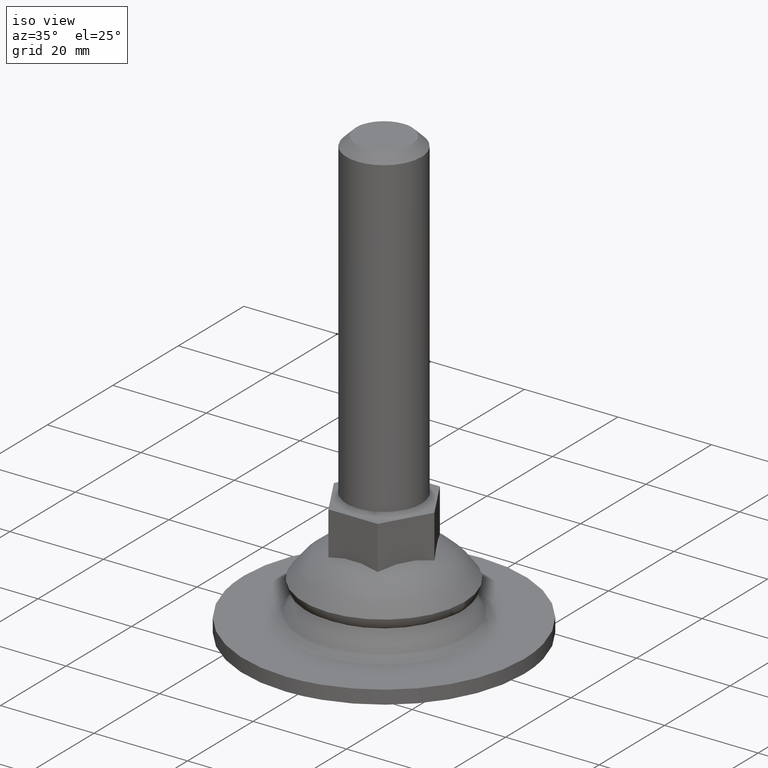
[diagram: clean part render]
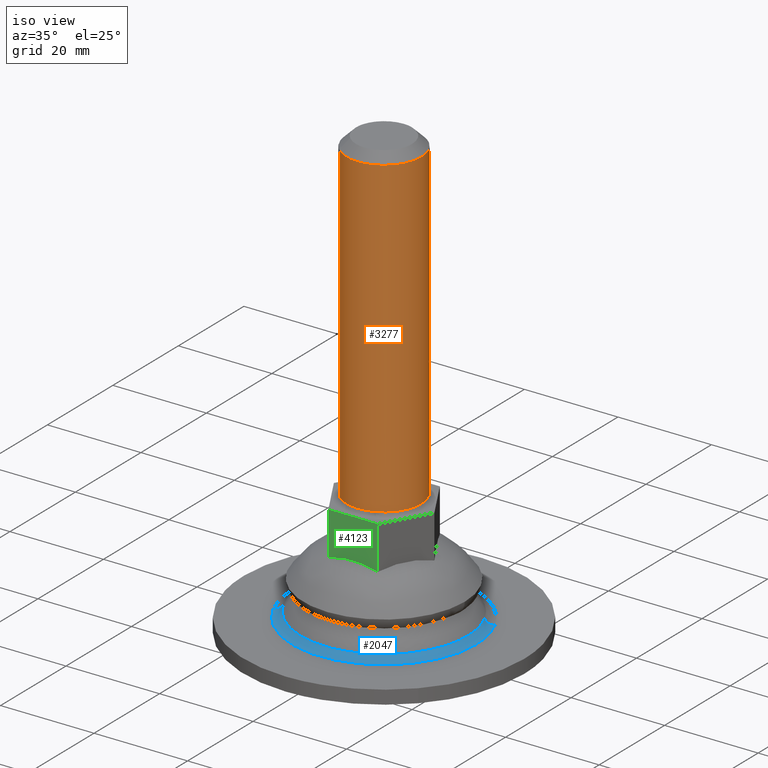
[diagram: same view with three faces highlighted in distinct colors, each labeled with its STEP entity id]
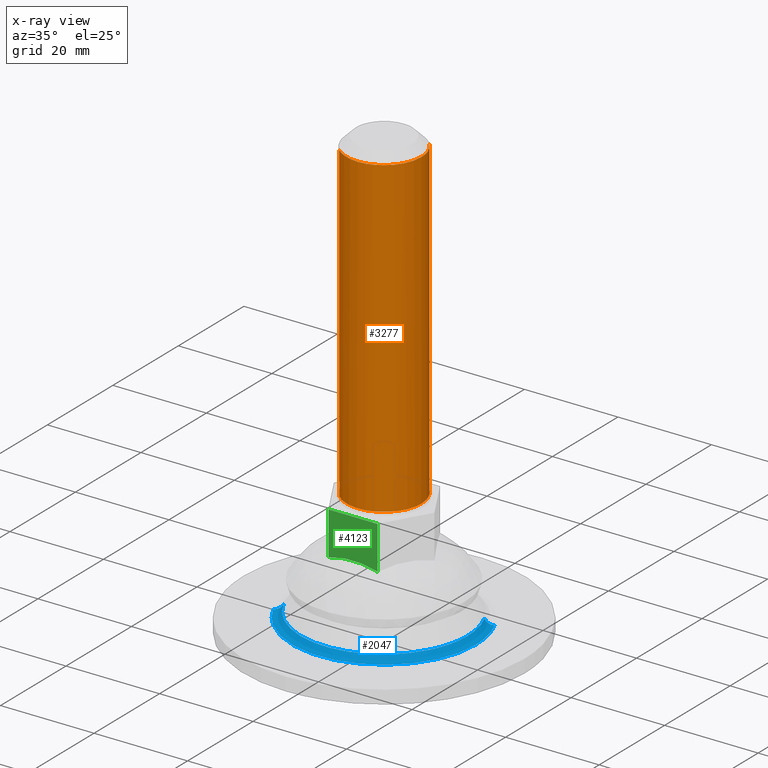
[diagram: x-ray of the same camera — body ghosted, the three highlighted faces saturated]
A machine part, iso view with three faces highlighted in distinct colors.
The next image is the same camera in x-ray (body ghosted, the three faces saturated) — at least one of them is partly hidden behind the body in this view.
Their STEP definitions:

[orange] entity #3277 — the highlighted face is a freeform B-spline surface patch.
#3082=CARTESIAN_POINT('',(5.706003812383623,5.607274329756733,93.999999897581574));
#3083=VERTEX_POINT('',#3082);
#3089=CARTESIAN_POINT('',(5.506836925585615,5.802995254554674,94.000000000000014));
#3090=VERTEX_POINT('',#3089);
#3091=CARTESIAN_POINT('',(5.506836925585615,5.802995254554674,94.000000000000014));
#3092=CARTESIAN_POINT('',(5.574356803127095,5.738921315413307,93.999999965854130));
#3093=CARTESIAN_POINT('',(5.640761045411946,5.673665984991286,93.999999931706867));
#3094=CARTESIAN_POINT('',(5.706003812383623,5.607274329756733,93.999999897581574));
#3095=B_SPLINE_CURVE_WITH_KNOTS('',3,(#3091,#3092,#3093,#3094),.UNSPECIFIED.,.F.,.U.,(4,4),(1.686004E-011,0.279253544245992),.UNSPECIFIED.);
#3096=EDGE_CURVE('',#3090,#3083,#3095,.T.);
#3146=CARTESIAN_POINT('',(-5.506836925585604,-5.802995254554662,94.0));
#3147=VERTEX_POINT('',#3146);
#3155=CARTESIAN_POINT('',(-0.000001714694257,-7.999999999999815,94.0));
#3156=VERTEX_POINT('',#3155);
#3157=CARTESIAN_POINT('',(-0.000001714694257,-7.999999999999815,94.0));
#3158=CARTESIAN_POINT('',(-0.506148926074638,-8.000047701292843,93.999999999999929));
#3159=CARTESIAN_POINT('',(-1.550059695286096,-7.900623406261761,94.000000000000455));
#3160=CARTESIAN_POINT('',(-2.859906918140296,-7.508860580389622,93.999999999999446));
#3161=CARTESIAN_POINT('',(-4.229075566327349,-6.846109738757063,94.000000000000597));
#3162=CARTESIAN_POINT('',(-5.025063494200799,-6.260429109874632,93.999999999999687));
#3163=CARTESIAN_POINT('',(-5.506836925585604,-5.802995254554662,94.0));
#3164=B_SPLINE_CURVE_WITH_KNOTS('',3,(#3157,#3158,#3159,#3160,#3161,#3162,#3163),.UNSPECIFIED.,.F.,.U.,(4,1,1,1,4),(0.000000016175435,1.518445172253514,3.131783613222968,4.080816135879150,6.073779891619102),.UNSPECIFIED.);
#3165=EDGE_CURVE('',#3156,#3147,#3164,.T.);
#3167=CARTESIAN_POINT('',(8.0,0.0,94.0));
#3168=VERTEX_POINT('',#3167);
#3169=CARTESIAN_POINT('',(8.0,0.0,94.0));
#3170=CARTESIAN_POINT('',(8.000031252900744,-0.458147609011140,93.999999999999957));
#3171=CARTESIAN_POINT('',(7.915472021908800,-1.439897918624933,93.999999999999972));
#3172=CARTESIAN_POINT('',(7.573438608584242,-2.675866616802981,94.000000000000071));
#3173=CARTESIAN_POINT('',(7.034794839203915,-3.871114164389953,93.999999999999858));
#3174=CARTESIAN_POINT('',(6.342509764222191,-4.949746148617195,94.000000000000199));
#3175=CARTESIAN_POINT('',(5.396877181086193,-5.955192201560070,93.999999999999929));
#3176=CARTESIAN_POINT('',(4.378406588576291,-6.730059063173249,94.000000000000469));
#3177=CARTESIAN_POINT('',(3.171048254998694,-7.394713006353076,93.999999999999574));
#3178=CARTESIAN_POINT('',(1.701674684745823,-7.880069066584490,94.000000000000341));
#3179=CARTESIAN_POINT('',(0.556320798870875,-8.000081236078479,93.999999999999915));
#3180=CARTESIAN_POINT('',(-0.000001714694257,-7.999999999999815,94.0));
#3181=B_SPLINE_CURVE_WITH_KNOTS('',3,(#3169,#3170,#3171,#3172,#3173,#3174,#3175,#3176,#3177,#3178,#3179,#3180),.UNSPECIFIED.,.F.,.U.,(4,1,1,1,1,1,1,1,1,4),(0.000000056674985,1.374452930891827,2.945259672522143,3.828848863431151,5.301491402975784,6.774070816200982,7.952191861542921,9.130310846397389,10.897483808358460,12.566450429438150),.UNSPECIFIED.);
#3182=EDGE_CURVE('',#3168,#3156,#3181,.T.);
#3184=CARTESIAN_POINT('',(5.706003812383623,5.607274329756733,93.999999897581574));
#3185=CARTESIAN_POINT('',(6.182499645132988,5.122681552220209,93.999999906432691));
#3186=CARTESIAN_POINT('',(6.754244905088803,4.368903645892124,93.999999920201120));
#3187=CARTESIAN_POINT('',(7.389245733843075,3.128841386910978,93.999999942850494));
#3188=CARTESIAN_POINT('',(7.854757695485142,1.812146395846576,93.999999966901015));
#3189=CARTESIAN_POINT('',(8.000204171574975,0.679610116457893,93.999999987586776));
#3190=CARTESIAN_POINT('',(8.0,0.0,94.0));
#3191=B_SPLINE_CURVE_WITH_KNOTS('',3,(#3184,#3185,#3186,#3187,#3188,#3189,#3190),.UNSPECIFIED.,.F.,.U.,(4,1,1,1,4),(0.000000018089785,2.038780373395662,2.815467784469893,4.174630025855187,6.213410381146264),.UNSPECIFIED.);
#3192=EDGE_CURVE('',#3083,#3168,#3191,.T.);
#3202=CARTESIAN_POINT('',(5.506836605550030,5.802994968098299,95.675000003318871));
#3203=CARTESIAN_POINT('',(11.309831573648330,0.296158362548269,95.675000003318857));
#3204=CARTESIAN_POINT('',(5.802994968098299,-5.506836605550030,95.675000003318871));
#3205=CARTESIAN_POINT('',(0.296158362548269,-11.309831573648330,95.675000003318857));
#3206=CARTESIAN_POINT('',(-5.506836605550030,-5.802994968098299,95.675000003318871));
#3207=CARTESIAN_POINT('',(5.506836605550030,5.802994968098299,25.283124863844080));
#3208=CARTESIAN_POINT('',(11.309831573648330,0.296158362548269,25.283124863844087));
#3209=CARTESIAN_POINT('',(5.802994968098299,-5.506836605550030,25.283124863844080));
#3210=CARTESIAN_POINT('',(0.296158362548269,-11.309831573648330,25.283124863844069));
#3211=CARTESIAN_POINT('',(-5.506836605550030,-5.802994968098299,25.283124863844080));
#3219=(BOUNDED_SURFACE()B_SPLINE_SURFACE(2,1,((#3202,#3207),(#3203,#3208),(#3204,#3209),(#3205,#3210),(#3206,#3211)),.UNSPECIFIED.,.F.,.F.,.U.)B_SPLINE_SURFACE_WITH_KNOTS((3,2,3),(2,2),(0.0,13.254833995939039,26.509667991878079),(0.0,70.391875139474791),.UNSPECIFIED.)GEOMETRIC_REPRESENTATION_ITEM()RATIONAL_B_SPLINE_SURFACE(((1.0,1.0),(0.707106781186548,0.707106781186548),(1.0,1.0),(0.707106781186548,0.707106781186548),(1.0,1.0)))REPRESENTATION_ITEM('')SURFACE());
#3220=ORIENTED_EDGE('',*,*,#3096,.T.);
#3221=ORIENTED_EDGE('',*,*,#3192,.T.);
#3222=ORIENTED_EDGE('',*,*,#3182,.T.);
#3223=ORIENTED_EDGE('',*,*,#3165,.T.);
#3224=CARTESIAN_POINT('',(-5.506836651415622,-5.802994924573477,26.999999867248420));
#3225=VERTEX_POINT('',#3224);
#3226=CARTESIAN_POINT('',(-5.506836925585604,-5.802995254554662,94.0));
#3227=CARTESIAN_POINT('',(-5.506836651415622,-5.802994924573477,26.999999867248420));
#3228=QUASI_UNIFORM_CURVE('',1,(#3226,#3227),.UNSPECIFIED.,.F.,.U.);
#3229=EDGE_CURVE('',#3147,#3225,#3228,.T.);
#3230=ORIENTED_EDGE('',*,*,#3229,.T.);
#3231=CARTESIAN_POINT('',(3.223251485728826,-7.321929380958745,26.999999867252320));
#3232=VERTEX_POINT('',#3231);
#3233=CARTESIAN_POINT('',(-5.506836651415622,-5.802994924573477,26.999999867248420));
#3234=CARTESIAN_POINT('',(-5.134337615001857,-6.156570955704853,26.999999867248629));
#3235=CARTESIAN_POINT('',(-4.379004946413430,-6.746202921918393,26.999999867249169));
#3236=CARTESIAN_POINT('',(-3.162666406801427,-7.385777527716805,26.999999867249709));
#3237=CARTESIAN_POINT('',(-1.930009025707038,-7.799167196479332,26.999999867250409));
#3238=CARTESIAN_POINT('',(-0.525585423841248,-8.030341771229585,26.999999867251081));
#3239=CARTESIAN_POINT('',(1.244539289322147,-7.986258841535419,26.999999867251631));
#3240=CARTESIAN_POINT('',(2.529459733741287,-7.627698338543156,26.999999867252171));
#3241=CARTESIAN_POINT('',(3.223251485728826,-7.321929380958745,26.999999867252320));
#3242=B_SPLINE_CURVE_WITH_KNOTS('',3,(#3233,#3234,#3235,#3236,#3237,#3238,#3239,#3240,#3241),.UNSPECIFIED.,.F.,.U.,(4,1,1,1,1,1,4),(0.000000048305294,1.540749957915482,2.861413592086605,4.108707189269994,5.429325132856368,7.116845636353181,9.391300613907250),.UNSPECIFIED.);
#3243=EDGE_CURVE('',#3225,#3232,#3242,.T.);
#3244=ORIENTED_EDGE('',*,*,#3243,.T.);
#3245=CARTESIAN_POINT('',(8.0,0.0,26.999999867245901));
#3246=VERTEX_POINT('',#3245);
#3247=CARTESIAN_POINT('',(3.223251485728826,-7.321929380958745,26.999999867252320));
#3248=CARTESIAN_POINT('',(3.862617469065063,-7.040666911204275,26.999999867251891));
#3249=CARTESIAN_POINT('',(5.025317381094191,-6.334428598487713,26.999999867251031));
#3250=CARTESIAN_POINT('',(6.295124801580811,-5.030764591347351,26.999999867249649));
#3251=CARTESIAN_POINT('',(7.174503885137224,-3.641870121184164,26.999999867248469));
#3252=CARTESIAN_POINT('',(7.819929795278646,-2.023051893947323,26.999999867247389));
#3253=CARTESIAN_POINT('',(8.000286896857450,-0.746683218606934,26.999999867246238));
#3254=CARTESIAN_POINT('',(8.0,0.0,26.999999867245901));
#3255=B_SPLINE_CURVE_WITH_KNOTS('',3,(#3247,#3248,#3249,#3250,#3251,#3252,#3253,#3254),.UNSPECIFIED.,.F.,.U.,(4,1,1,1,1,4),(0.000000047874217,2.095448245641456,4.046389078922818,5.419260210852647,7.008917837697455,9.248880208979655),.UNSPECIFIED.);
#3256=EDGE_CURVE('',#3232,#3246,#3255,.T.);
#3257=ORIENTED_EDGE('',*,*,#3256,.T.);
#3258=CARTESIAN_POINT('',(5.506836651415623,5.802994924573479,26.999999867248430));
#3259=VERTEX_POINT('',#3258);
#3260=CARTESIAN_POINT('',(8.0,0.0,26.999999867245901));
#3261=CARTESIAN_POINT('',(8.000057572425897,0.507239076934535,26.999999867246061));
#3262=CARTESIAN_POINT('',(7.912862627156020,1.420247798132279,26.999999867246309));
#3263=CARTESIAN_POINT('',(7.538037677053555,2.794421304275376,26.999999867246821));
#3264=CARTESIAN_POINT('',(6.832927443940565,4.302186224485710,26.999999867247471));
#3265=CARTESIAN_POINT('',(6.046683758062447,5.291069403687211,26.999999867248160));
#3266=CARTESIAN_POINT('',(5.506836651415623,5.802994924573479,26.999999867248430));
#3267=B_SPLINE_CURVE_WITH_KNOTS('',3,(#3260,#3261,#3262,#3263,#3264,#3265,#3266),.UNSPECIFIED.,.F.,.U.,(4,1,1,1,4),(0.000000017982752,1.521718701292829,2.739108314839731,4.260807558806393,6.492668253596076),.UNSPECIFIED.);
#3268=EDGE_CURVE('',#3246,#3259,#3267,.T.);
#3269=ORIENTED_EDGE('',*,*,#3268,.T.);
#3270=CARTESIAN_POINT('',(5.506836925585615,5.802995254554674,94.000000000000014));
#3271=CARTESIAN_POINT('',(5.506836651415623,5.802994924573479,26.999999867248430));
#3272=QUASI_UNIFORM_CURVE('',1,(#3270,#3271),.UNSPECIFIED.,.F.,.U.);
#3273=EDGE_CURVE('',#3090,#3259,#3272,.T.);
#3274=ORIENTED_EDGE('',*,*,#3273,.F.);
#3275=EDGE_LOOP('',(#3220,#3221,#3222,#3223,#3230,#3244,#3257,#3269,#3274));
#3276=FACE_OUTER_BOUND('',#3275,.T.);
#3277=ADVANCED_FACE('',(#3276),#3219,.T.);

[blue] entity #2047 — the highlighted face is a freeform B-spline surface patch.
#1722=CARTESIAN_POINT('',(-16.161437285455271,-7.604995119649921,4.076013502861265));
#1723=VERTEX_POINT('',#1722);
#1734=CARTESIAN_POINT('',(17.861355096319649,0.0,4.076013504395419));
#1735=VERTEX_POINT('',#1734);
#1736=CARTESIAN_POINT('',(17.861355096319649,0.0,4.076013504395419));
#1737=CARTESIAN_POINT('',(17.861462997717631,-1.099604924009491,4.076013504384848));
#1738=CARTESIAN_POINT('',(17.701263669010508,-2.827505183353669,4.076013504361439));
#1739=CARTESIAN_POINT('',(17.109164471905839,-5.273771363216730,4.076013504312449));
#1740=CARTESIAN_POINT('',(16.187037402921039,-7.752667962699063,4.076013504249086));
#1741=CARTESIAN_POINT('',(14.762230837327809,-10.212359501096831,4.076013504164281));
#1742=CARTESIAN_POINT('',(13.044681924774610,-12.265500037122051,4.076013504070811));
#1743=CARTESIAN_POINT('',(11.437628406546301,-13.771305855458539,4.076013503987340));
#1744=CARTESIAN_POINT('',(9.564665384418806,-15.156536728787220,4.076013503893663));
#1745=CARTESIAN_POINT('',(7.317453388313557,-16.367653832734501,4.076013503785338));
#1746=CARTESIAN_POINT('',(4.915574956308149,-17.227836288795949,4.076013503674269));
#1747=CARTESIAN_POINT('',(2.267383342315917,-17.790584076673220,4.076013503554785));
#1748=CARTESIAN_POINT('',(-0.725682375849336,-17.951512482593380,4.076013503424946));
#1749=CARTESIAN_POINT('',(-3.697120319048789,-17.551996085019759,4.076013503301038));
#1750=CARTESIAN_POINT('',(-6.048671808205473,-16.845116352629930,4.076013503206875));
#1751=CARTESIAN_POINT('',(-8.247884618830062,-15.908251745241810,4.076013503121414));
#1752=CARTESIAN_POINT('',(-10.195919786052411,-14.740630523062849,4.076013503048955));
#1753=CARTESIAN_POINT('',(-12.173525820745230,-13.133343196929570,4.076013502979478));
#1754=CARTESIAN_POINT('',(-13.503225971277850,-11.746476232871240,4.076013502935634));
#1755=CARTESIAN_POINT('',(-14.941751357583660,-9.878207113856666,4.076013502891860));
#1756=CARTESIAN_POINT('',(-15.706733883399140,-8.571582662157457,4.076013502871359));
#1757=CARTESIAN_POINT('',(-16.161437285455271,-7.604995119649921,4.076013502861265));
#1758=B_SPLINE_CURVE_WITH_KNOTS('',3,(#1736,#1737,#1738,#1739,#1740,#1741,#1742,#1743,#1744,#1745,#1746,#1747,#1748,#1749,#1750,#1751,#1752,#1753,#1754,#1755,#1756,#1757),.UNSPECIFIED.,.F.,.U.,(4,1,1,1,1,1,1,1,1,1,1,1,1,1,1,1,1,1,1,4),(0.000000133176734,3.298790902591485,5.183853572113705,7.540199099210220,11.216055062083580,13.666636185342099,15.551698810070480,17.813753929373771,20.641323598397289,23.186154100918230,25.448148008372591,28.746996961086630,32.140111396161572,34.402183998165782,36.098740628561060,39.303344999912007,41.188405734581082,43.733225465086377,45.052762489385827,48.257323669786260),.UNSPECIFIED.);
#1759=EDGE_CURVE('',#1735,#1723,#1758,.T.);
#1761=CARTESIAN_POINT('',(16.161437285455271,7.604995119649917,4.076013502861264));
#1762=VERTEX_POINT('',#1761);
#1763=CARTESIAN_POINT('',(16.161437285455271,7.604995119649917,4.076013502861264));
#1764=CARTESIAN_POINT('',(16.771478346961320,6.309344756953520,4.076013503136400));
#1765=CARTESIAN_POINT('',(17.599474884198521,3.805132782692286,4.076013503653088));
#1766=CARTESIAN_POINT('',(17.861501920773790,1.186566538491044,4.076013504167452));
#1767=CARTESIAN_POINT('',(17.861355096319649,0.0,4.076013504395419));
#1768=B_SPLINE_CURVE_WITH_KNOTS('',3,(#1763,#1764,#1765,#1766,#1767),.UNSPECIFIED.,.F.,.U.,(4,1,4),(4.674820E-009,4.296163057215974,7.855849732298115),.UNSPECIFIED.);
#1769=EDGE_CURVE('',#1762,#1735,#1768,.T.);
#1908=CARTESIAN_POINT('',(-17.810370395241780,-8.380924143207288,2.900000000000000));
#1909=VERTEX_POINT('',#1908);
#1921=CARTESIAN_POINT('',(-17.810370395241780,-8.380924143207288,2.900000000000000));
#1922=CARTESIAN_POINT('',(-17.648325472970580,-8.304671590835781,2.899945637036400));
#1923=CARTESIAN_POINT('',(-17.313448899622191,-8.147090636805839,2.950035150493140));
#1924=CARTESIAN_POINT('',(-16.843358861858071,-7.925883056084557,3.176913314961951));
#1925=CARTESIAN_POINT('',(-16.433816831999071,-7.733167205182173,3.557055421741022));
#1926=CARTESIAN_POINT('',(-16.237031558915060,-7.640567084603003,3.891027084317592));
#1927=CARTESIAN_POINT('',(-16.161437285455271,-7.604995119649921,4.076013502861265));
#1928=B_SPLINE_CURVE_WITH_KNOTS('',3,(#1921,#1922,#1923,#1924,#1925,#1926,#1927),.UNSPECIFIED.,.F.,.U.,(4,1,1,1,4),(0.000000091849443,0.537266242975528,1.110378796055572,1.683437325127913,2.292342256153771),.UNSPECIFIED.);
#1929=EDGE_CURVE('',#1909,#1723,#1928,.T.);
#1933=CARTESIAN_POINT('',(17.810370395241780,8.380924143207286,2.900000000000000));
#1934=VERTEX_POINT('',#1933);
#1935=CARTESIAN_POINT('',(17.810370395241780,8.380924143207286,2.900000000000000));
#1936=CARTESIAN_POINT('',(17.594283228520471,8.279241240921390,2.899799829276054));
#1937=CARTESIAN_POINT('',(17.194719129786471,8.091220648005560,2.980089206946831));
#1938=CARTESIAN_POINT('',(16.708363669423839,7.862359140390998,3.280970363588166));
#1939=CARTESIAN_POINT('',(16.370554318894829,7.703398126176447,3.656409619794911));
#1940=CARTESIAN_POINT('',(16.219271397008988,7.632209786781754,3.934576043731679));
#1941=CARTESIAN_POINT('',(16.161437285455271,7.604995119649917,4.076013502861264));
#1942=B_SPLINE_CURVE_WITH_KNOTS('',3,(#1935,#1936,#1937,#1938,#1939,#1940,#1941),.UNSPECIFIED.,.F.,.U.,(4,1,1,1,4),(0.000000091852903,0.716364542494928,1.325250374454535,1.826712606158751,2.292342256153747),.UNSPECIFIED.);
#1943=EDGE_CURVE('',#1934,#1762,#1942,.T.);
#1974=CARTESIAN_POINT('',(17.672005989316656,8.927309131011166,2.902888114668352));
#1975=CARTESIAN_POINT('',(17.789111124082766,8.678448052001041,2.902888114668352));
#1976=CARTESIAN_POINT('',(26.334259614935313,-9.480916846751631,2.902888114668352));
#1977=CARTESIAN_POINT('',(8.426671384091838,-17.907588230843473,2.902888114668351));
#1978=CARTESIAN_POINT('',(-9.480916846751631,-26.334259614935313,2.902888114668352));
#1979=CARTESIAN_POINT('',(-18.026065337582050,-8.174894716229650,2.902888114668353));
#1980=CARTESIAN_POINT('',(-18.143170472326549,-7.926033637265452,2.902888114668352));
#1981=CARTESIAN_POINT('',(16.380507584240977,8.274887130289320,2.825074154295417));
#1982=CARTESIAN_POINT('',(16.489054488839663,8.044213216155738,2.825074154295417));
#1983=CARTESIAN_POINT('',(24.409709888543279,-8.788036310516127,2.825074154295417));
#1984=CARTESIAN_POINT('',(7.810836789013578,-16.598873099529701,2.825074154295418));
#1985=CARTESIAN_POINT('',(-8.788036310516127,-24.409709888543279,2.825074154295417));
#1986=CARTESIAN_POINT('',(-16.708691710199226,-7.577460361914995,2.825074154295417));
#1987=CARTESIAN_POINT('',(-16.817238614777882,-7.346786447823984,2.825074154295417));
#1988=CARTESIAN_POINT('',(15.911677999464356,8.038050031230231,4.175024163968951));
#1989=CARTESIAN_POINT('',(16.017118162715125,7.813978278526991,4.175024163968951));
#1990=CARTESIAN_POINT('',(23.711074996265996,-8.536512272370633,4.175024163968952));
#1991=CARTESIAN_POINT('',(7.587281361947676,-16.123793634318314,4.175024163968951));
#1992=CARTESIAN_POINT('',(-8.536512272370633,-23.711074996265996,4.175024163968952));
#1993=CARTESIAN_POINT('',(-16.230469105901566,-7.360584445410690,4.175024163968950));
#1994=CARTESIAN_POINT('',(-16.335909269132884,-7.136512692748801,4.175024163968951));
#2002=(BOUNDED_SURFACE()B_SPLINE_SURFACE(2,2,((#1974,#1981,#1988),(#1975,#1982,#1989),(#1976,#1983,#1990),(#1977,#1984,#1991),(#1978,#1985,#1992),(#1979,#1986,#1993),(#1980,#1987,#1994)),.UNSPECIFIED.,.F.,.F.,.U.)B_SPLINE_SURFACE_WITH_KNOTS((3,1,2,1,3),(3,3),(0.0,0.655821763527444,33.446909936200093,66.237998108872731,66.893819872277007),(0.0,2.593376482192816),.UNSPECIFIED.)GEOMETRIC_REPRESENTATION_ITEM()RATIONAL_B_SPLINE_SURFACE(((0.929318785188971,0.752974996682848,0.930094023897170),(0.923938001583604,0.748615248895571,0.924708751636460),(0.649518037740262,0.526268111769067,0.650059866370603),(0.918557217978238,0.744255501108295,0.919323479375749),(0.649518037740262,0.526268111769067,0.650059866370603),(0.923938001582594,0.748615248894752,0.924708751635448),(0.929318785186950,0.752974996681210,0.930094023895147)))REPRESENTATION_ITEM('')SURFACE());
#2003=CARTESIAN_POINT('',(19.683728893064199,0.0,2.900000000000000));
#2004=VERTEX_POINT('',#2003);
#2005=CARTESIAN_POINT('',(19.683728893064199,0.0,2.900000000000000));
#2006=CARTESIAN_POINT('',(19.683771105959341,-0.900189904841100,2.900000000000001));
#2007=CARTESIAN_POINT('',(19.567138763297240,-2.596689562571804,2.900000000000002));
#2008=CARTESIAN_POINT('',(19.082996160729270,-5.011391445821820,2.900000000000009));
#2009=CARTESIAN_POINT('',(18.391903908746020,-7.120678242345872,2.899999999999985));
#2010=CARTESIAN_POINT('',(17.420397078399940,-9.268520910925716,2.899999999999995));
#2011=CARTESIAN_POINT('',(16.176392996609788,-11.315164814445330,2.900000000000033));
#2012=CARTESIAN_POINT('',(14.587963415511810,-13.287128838465231,2.899999999999929));
#2013=CARTESIAN_POINT('',(13.070907025805781,-14.762116429434680,2.900000000000135));
#2014=CARTESIAN_POINT('',(11.279933199627511,-16.184225657820981,2.899999999999821));
#2015=CARTESIAN_POINT('',(9.482988684908310,-17.304890785881270,2.900000000000142));
#2016=CARTESIAN_POINT('',(7.189642665827649,-18.374103242991328,2.899999999999794));
#2017=CARTESIAN_POINT('',(5.112194365102423,-19.056861215439572,2.900000000000541));
#2018=CARTESIAN_POINT('',(2.801600683610939,-19.522346173318141,2.899999999999569));
#2019=CARTESIAN_POINT('',(0.728965116017778,-19.710686715117770,2.900000000000181));
#2020=CARTESIAN_POINT('',(-1.974502368182001,-19.656240402265588,2.899999999999936));
#2021=CARTESIAN_POINT('',(-4.718910720719967,-19.198404845773521,2.900000000000020));
#2022=CARTESIAN_POINT('',(-7.446947291093080,-18.275260467593249,2.899999999999998));
#2023=CARTESIAN_POINT('',(-9.944992095990564,-17.067881720952670,2.899999999999998));
#2024=CARTESIAN_POINT('',(-12.160624901423850,-15.567087759552139,2.900000000000003));
#2025=CARTESIAN_POINT('',(-14.464662026773031,-13.461287532042309,2.899999999999998));
#2026=CARTESIAN_POINT('',(-16.322856824055432,-11.163029305455550,2.900000000000003));
#2027=CARTESIAN_POINT('',(-17.397640635701151,-9.258099923646366,2.900000000000000));
#2028=CARTESIAN_POINT('',(-17.810370395241780,-8.380924143207288,2.900000000000000));
#2029=B_SPLINE_CURVE_WITH_KNOTS('',3,(#2005,#2006,#2007,#2008,#2009,#2010,#2011,#2012,#2013,#2014,#2015,#2016,#2017,#2018,#2019,#2020,#2021,#2022,#2023,#2024,#2025,#2026,#2027,#2028),.UNSPECIFIED.,.F.,.U.,(4,1,1,1,1,1,1,1,1,1,1,1,1,1,1,1,1,1,1,1,1,4),(0.000000129487681,2.700565774287895,5.089541426297856,7.374692796344775,9.348216305277269,12.152677045043500,14.541678108961481,16.930671302723329,18.488723424860950,21.397039964131420,23.266683613666711,26.071174159601849,27.940753899184070,30.329748478338129,32.303244691081623,36.042560828094643,38.639288032075193,40.924415960628110,44.352108681692577,46.637247072960598,50.272680395636840,53.180963654883591),.UNSPECIFIED.);
#2030=EDGE_CURVE('',#2004,#1909,#2029,.T.);
#2031=ORIENTED_EDGE('',*,*,#2030,.F.);
#2032=CARTESIAN_POINT('',(17.810370395241780,8.380924143207286,2.900000000000000));
#2033=CARTESIAN_POINT('',(18.194361115186741,7.564954628639153,2.900000000000000));
#2034=CARTESIAN_POINT('',(18.915557504521122,5.711655948632675,2.900000000000000));
#2035=CARTESIAN_POINT('',(19.547200708542420,2.885789383640887,2.900000000000000));
#2036=CARTESIAN_POINT('',(19.683754709355160,0.901807190458883,2.899999999999998));
#2037=CARTESIAN_POINT('',(19.683728893064199,0.0,2.900000000000000));
#2038=B_SPLINE_CURVE_WITH_KNOTS('',3,(#2032,#2033,#2034,#2035,#2036,#2037),.UNSPECIFIED.,.F.,.U.,(4,1,1,4),(4.448303E-009,2.705429150136188,5.951944021996121,8.657373167684135),.UNSPECIFIED.);
#2039=EDGE_CURVE('',#1934,#2004,#2038,.T.);
#2040=ORIENTED_EDGE('',*,*,#2039,.F.);
#2041=ORIENTED_EDGE('',*,*,#1943,.T.);
#2042=ORIENTED_EDGE('',*,*,#1769,.T.);
#2043=ORIENTED_EDGE('',*,*,#1759,.T.);
#2044=ORIENTED_EDGE('',*,*,#1929,.F.);
#2045=EDGE_LOOP('',(#2031,#2040,#2041,#2042,#2043,#2044));
#2046=FACE_OUTER_BOUND('',#2045,.T.);
#2047=ADVANCED_FACE('',(#2046),#2002,.F.);

[green] entity #4123 — the highlighted face is a freeform B-spline surface patch.
#3976=CARTESIAN_POINT('',(-5.239698000000000,-9.499999999999771,16.734191526984549));
#3977=VERTEX_POINT('',#3976);
#4023=CARTESIAN_POINT('',(5.290647000000000,-9.499999999999771,16.718892882503798));
#4024=VERTEX_POINT('',#4023);
#4035=CARTESIAN_POINT('',(-5.239698000000000,-9.499999999999771,16.734191526984549));
#4036=CARTESIAN_POINT('',(-4.333538025347797,-9.499999999999771,17.004909217323700));
#4037=CARTESIAN_POINT('',(-2.533700327774365,-9.499999999999790,17.393660440239849));
#4038=CARTESIAN_POINT('',(0.249848728065368,-9.499999999999780,17.567511788903591));
#4039=CARTESIAN_POINT('',(2.862209630830852,-9.499999999999661,17.336848937533400));
#4040=CARTESIAN_POINT('',(4.545045272541908,-9.499999999999877,16.943979223761680));
#4041=CARTESIAN_POINT('',(5.290647000000000,-9.499999999999771,16.718892882503798));
#4042=B_SPLINE_CURVE_WITH_KNOTS('',3,(#4035,#4036,#4037,#4038,#4039,#4040,#4041),.UNSPECIFIED.,.F.,.U.,(4,1,1,1,4),(2.857004E-009,2.837203530532404,5.507509352024344,8.344715345445405,10.681233251608120),.UNSPECIFIED.);
#4043=EDGE_CURVE('',#3977,#4024,#4042,.T.);
#4053=CARTESIAN_POINT('',(-5.239698000000000,-9.499999999999771,25.999999867245901));
#4054=VERTEX_POINT('',#4053);
#4062=CARTESIAN_POINT('',(5.290647000000000,-9.499999999999771,25.999999867245901));
#4063=VERTEX_POINT('',#4062);
#4064=CARTESIAN_POINT('',(5.290647000000000,-9.499999999999771,25.999999867245901));
#4065=CARTESIAN_POINT('',(-5.239698000000000,-9.499999999999771,25.999999867245901));
#4066=QUASI_UNIFORM_CURVE('',1,(#4064,#4065),.UNSPECIFIED.,.F.,.U.);
#4067=EDGE_CURVE('',#4063,#4054,#4066,.T.);
#4104=CARTESIAN_POINT('',(-5.765688712340150,-9.499999999999771,26.463591143145191));
#4105=CARTESIAN_POINT('',(-5.765688712340150,-9.499999999999771,16.255301357665829));
#4106=CARTESIAN_POINT('',(5.816637994786012,-9.499999999999771,26.463591143145191));
#4107=CARTESIAN_POINT('',(5.816637994786012,-9.499999999999771,16.255301357665829));
#4108=B_SPLINE_SURFACE_WITH_KNOTS('',1,1,((#4104,#4106),(#4105,#4107)),.UNSPECIFIED.,.F.,.F.,.U.,(2,2),(2,2),(0.0,10.208289785479360),(0.0,11.582326707126160),.UNSPECIFIED.);
#4109=CARTESIAN_POINT('',(-5.239698000000000,-9.499999999999771,25.999999867245901));
#4110=CARTESIAN_POINT('',(-5.239698000000000,-9.499999999999771,16.734191526984549));
#4111=QUASI_UNIFORM_CURVE('',1,(#4109,#4110),.UNSPECIFIED.,.F.,.U.);
#4112=EDGE_CURVE('',#4054,#3977,#4111,.T.);
#4113=ORIENTED_EDGE('',*,*,#4112,.T.);
#4114=ORIENTED_EDGE('',*,*,#4043,.T.);
#4115=CARTESIAN_POINT('',(5.290647000000000,-9.499999999999771,25.999999867245901));
#4116=CARTESIAN_POINT('',(5.290647000000000,-9.499999999999771,16.718892882503798));
#4117=QUASI_UNIFORM_CURVE('',1,(#4115,#4116),.UNSPECIFIED.,.F.,.U.);
#4118=EDGE_CURVE('',#4063,#4024,#4117,.T.);
#4119=ORIENTED_EDGE('',*,*,#4118,.F.);
#4120=ORIENTED_EDGE('',*,*,#4067,.T.);
#4121=EDGE_LOOP('',(#4113,#4114,#4119,#4120));
#4122=FACE_OUTER_BOUND('',#4121,.T.);
#4123=ADVANCED_FACE('',(#4122),#4108,.T.);